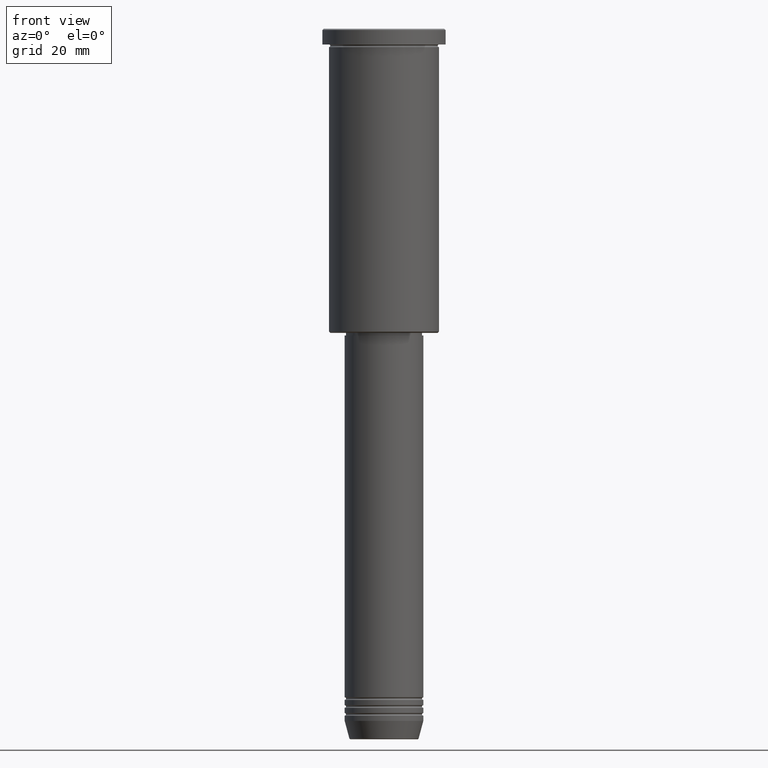
[diagram: clean part render]
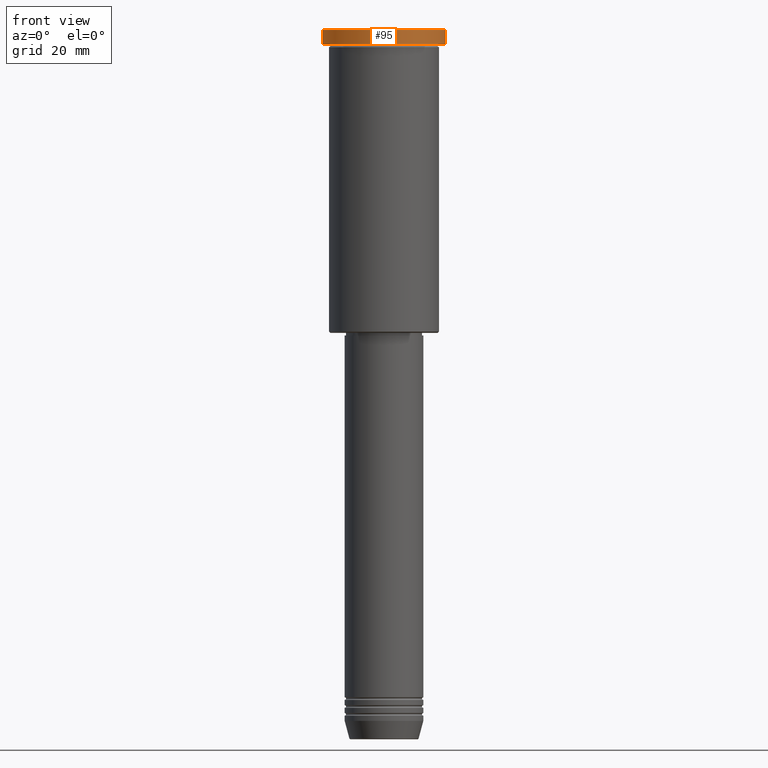
[diagram: same view with one face highlighted and labeled with its STEP entity id]
A machine part, front view. The second image highlights one B-rep face of the part: STEP entity #95.
In plain terms, the highlighted cylindrical surface (partial cylindrical patch) has radius 23.5 mm, axis along (-0, -0, 1).
Its self-contained STEP definition (entity closure, byte-faithful):
#4 = VERTEX_POINT ( 'NONE', #425 ) ;
#9 = CARTESIAN_POINT ( 'NONE',  ( 23.50000000000000000, 0.000000000000000000, -0.5000000000000004441 ) ) ;
#84 = AXIS2_PLACEMENT_3D ( 'NONE', #954, #411, #162 ) ;
#86 = FACE_OUTER_BOUND ( 'NONE', #311, .T. ) ;
#93 = DIRECTION ( 'NONE',  ( 1.000000000000000000, 0.000000000000000000, 0.000000000000000000 ) ) ;
#95 = ADVANCED_FACE ( 'NONE', ( #86 ), #544, .T. ) ;
#140 = ORIENTED_EDGE ( 'NONE', *, *, #1088, .T. ) ;
#162 = DIRECTION ( 'NONE',  ( 1.000000000000000000, 0.000000000000000000, 0.000000000000000000 ) ) ;
#167 = CARTESIAN_POINT ( 'NONE',  ( 23.50000000000000000, 0.000000000000000000, -5.999999999999994671 ) ) ;
#178 = CARTESIAN_POINT ( 'NONE',  ( -23.50000000000000000, 2.877919977996280320E-15, -5.999999999999994671 ) ) ;
#244 = LINE ( 'NONE', #880, #741 ) ;
#311 = EDGE_LOOP ( 'NONE', ( #730, #814, #587, #140 ) ) ;
#315 = EDGE_CURVE ( 'NONE', #844, #492, #1172, .T. ) ;
#374 = CIRCLE ( 'NONE', #534, 23.50000000000000000 ) ;
#411 = DIRECTION ( 'NONE',  ( -0.000000000000000000, -0.000000000000000000, 1.000000000000000000 ) ) ;
#425 = CARTESIAN_POINT ( 'NONE',  ( -23.50000000000000000, 2.877919977996280320E-15, -0.5000000000000004441 ) ) ;
#456 = DIRECTION ( 'NONE',  ( -0.000000000000000000, -0.000000000000000000, 1.000000000000000000 ) ) ;
#492 = VERTEX_POINT ( 'NONE', #167 ) ;
#534 = AXIS2_PLACEMENT_3D ( 'NONE', #998, #819, #93 ) ;
#541 = DIRECTION ( 'NONE',  ( -0.000000000000000000, -0.000000000000000000, 1.000000000000000000 ) ) ;
#544 = CYLINDRICAL_SURFACE ( 'NONE', #940, 23.50000000000000000 ) ;
#587 = ORIENTED_EDGE ( 'NONE', *, *, #1044, .T. ) ;
#730 = ORIENTED_EDGE ( 'NONE', *, *, #875, .F. ) ;
#741 = VECTOR ( 'NONE', #1154, 1000.000000000000000 ) ;
#814 = ORIENTED_EDGE ( 'NONE', *, *, #315, .T. ) ;
#818 = DIRECTION ( 'NONE',  ( 1.000000000000000000, 0.000000000000000000, 0.000000000000000000 ) ) ;
#819 = DIRECTION ( 'NONE',  ( 0.000000000000000000, 0.000000000000000000, -1.000000000000000000 ) ) ;
#844 = VERTEX_POINT ( 'NONE', #178 ) ;
#875 = EDGE_CURVE ( 'NONE', #844, #4, #1180, .T. ) ;
#880 = CARTESIAN_POINT ( 'NONE',  ( 23.50000000000000000, 0.000000000000000000, 0.000000000000000000 ) ) ;
#898 = CARTESIAN_POINT ( 'NONE',  ( 0.000000000000000000, 0.000000000000000000, 0.000000000000000000 ) ) ;
#940 = AXIS2_PLACEMENT_3D ( 'NONE', #898, #456, #818 ) ;
#954 = CARTESIAN_POINT ( 'NONE',  ( 0.000000000000000000, 0.000000000000000000, -5.999999999999994671 ) ) ;
#998 = CARTESIAN_POINT ( 'NONE',  ( 0.000000000000000000, 0.000000000000000000, -0.5000000000000004441 ) ) ;
#1004 = VECTOR ( 'NONE', #541, 1000.000000000000000 ) ;
#1044 = EDGE_CURVE ( 'NONE', #492, #1100, #244, .T. ) ;
#1079 = CARTESIAN_POINT ( 'NONE',  ( -23.50000000000000000, 2.877919977996280320E-15, 0.000000000000000000 ) ) ;
#1088 = EDGE_CURVE ( 'NONE', #1100, #4, #374, .T. ) ;
#1100 = VERTEX_POINT ( 'NONE', #9 ) ;
#1154 = DIRECTION ( 'NONE',  ( -0.000000000000000000, -0.000000000000000000, 1.000000000000000000 ) ) ;
#1172 = CIRCLE ( 'NONE', #84, 23.50000000000000000 ) ;
#1180 = LINE ( 'NONE', #1079, #1004 ) ;